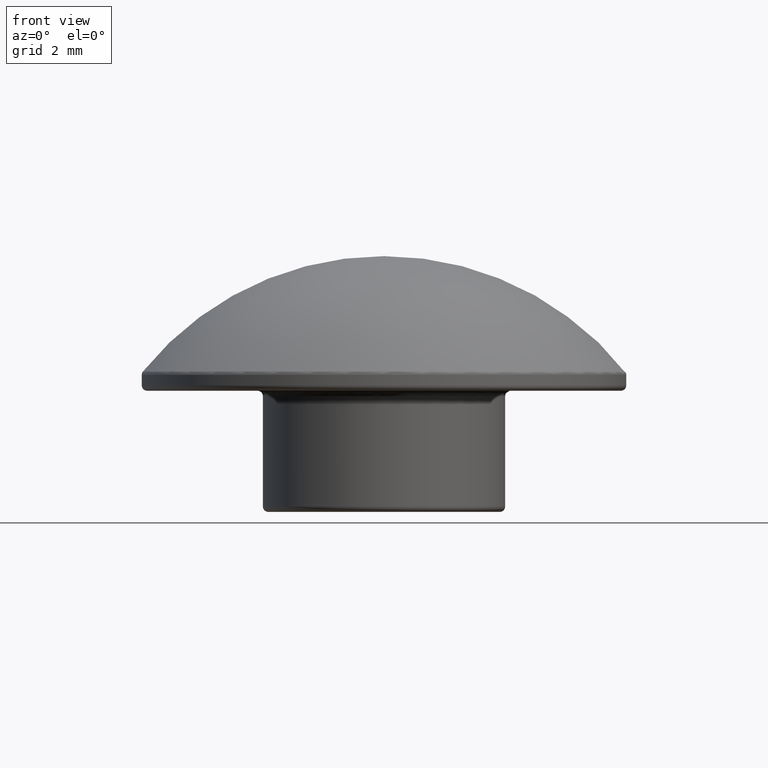
[diagram: clean part render]
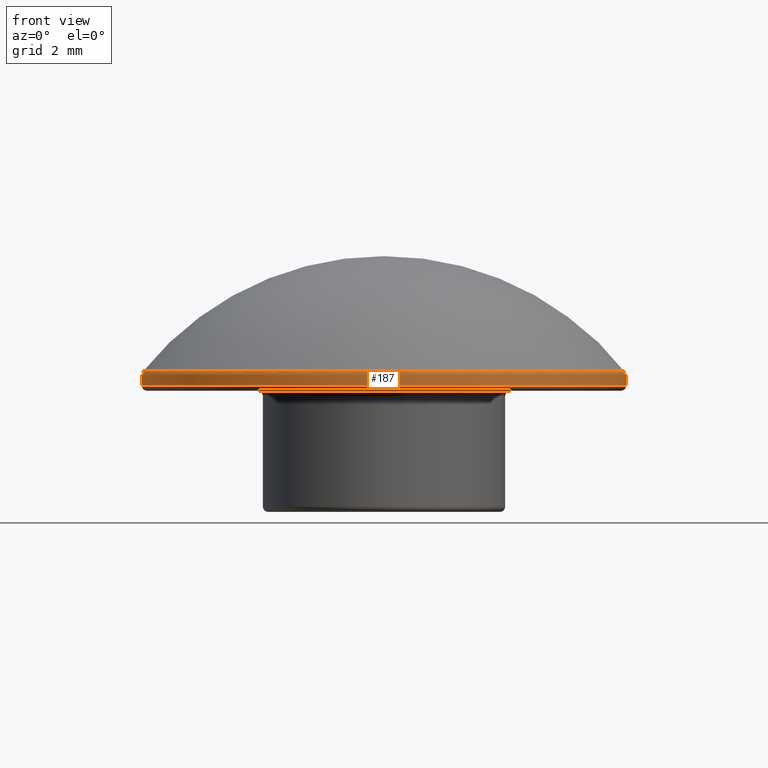
[diagram: same view with one face highlighted and labeled with its STEP entity id]
A machine part, front view. The second image highlights one B-rep face of the part: STEP entity #187.
In plain terms, the highlighted cylindrical surface (bore or boss wall) has radius 8.9999 mm, axis along (0, 0, -1).
Its self-contained STEP definition (entity closure, byte-faithful):
#23=LINE('',#358,#27);
#27=VECTOR('',#294,8.99992883305196);
#31=CYLINDRICAL_SURFACE('',#233,8.99992883305196);
#39=FACE_OUTER_BOUND('',#53,.T.);
#53=EDGE_LOOP('',(#150,#151,#152,#153,#154));
#72=CIRCLE('',#232,8.99992883305196);
#73=CIRCLE('',#234,8.99992883305196);
#74=CIRCLE('',#235,8.99992883305196);
#91=VERTEX_POINT('',#351);
#92=VERTEX_POINT('',#355);
#93=VERTEX_POINT('',#356);
#113=EDGE_CURVE('',#91,#91,#72,.T.);
#114=EDGE_CURVE('',#92,#93,#73,.T.);
#115=EDGE_CURVE('',#92,#91,#23,.T.);
#116=EDGE_CURVE('',#93,#92,#74,.T.);
#150=ORIENTED_EDGE('',*,*,#114,.F.);
#151=ORIENTED_EDGE('',*,*,#115,.T.);
#152=ORIENTED_EDGE('',*,*,#113,.F.);
#153=ORIENTED_EDGE('',*,*,#115,.F.);
#154=ORIENTED_EDGE('',*,*,#116,.F.);
#187=ADVANCED_FACE('',(#39),#31,.T.);
#232=AXIS2_PLACEMENT_3D('',#353,#288,#289);
#233=AXIS2_PLACEMENT_3D('',#354,#290,#291);
#234=AXIS2_PLACEMENT_3D('',#357,#292,#293);
#235=AXIS2_PLACEMENT_3D('',#359,#295,#296);
#288=DIRECTION('center_axis',(0.,0.,1.));
#289=DIRECTION('ref_axis',(1.,6.12323399573677E-17,0.));
#290=DIRECTION('center_axis',(0.,0.,-1.));
#291=DIRECTION('ref_axis',(1.,0.,0.));
#292=DIRECTION('center_axis',(0.,0.,-1.));
#293=DIRECTION('ref_axis',(1.,0.,0.));
#294=DIRECTION('',(0.,0.,1.));
#295=DIRECTION('center_axis',(0.,0.,-1.));
#296=DIRECTION('ref_axis',(1.,0.,0.));
#351=CARTESIAN_POINT('',(-8.99992883305196,-1.65326010569266E-15,7.08881178570999));
#353=CARTESIAN_POINT('Origin',(0.,0.,7.08881178570999));
#354=CARTESIAN_POINT('Origin',(0.,0.,7.159));
#355=CARTESIAN_POINT('',(-8.99992883305196,1.10217340379511E-15,6.7));
#356=CARTESIAN_POINT('',(8.99992883305196,-1.10217340379511E-15,6.7));
#357=CARTESIAN_POINT('Origin',(0.,0.,6.7));
#358=CARTESIAN_POINT('',(-8.99992883305196,1.10217340379511E-15,7.159));
#359=CARTESIAN_POINT('Origin',(0.,0.,6.7));